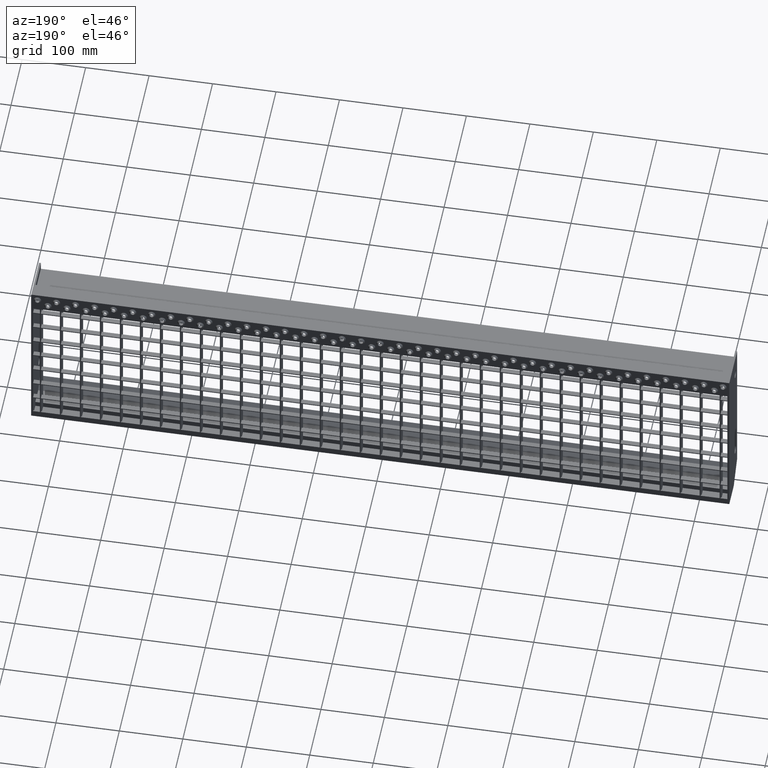
[diagram: clean part render]
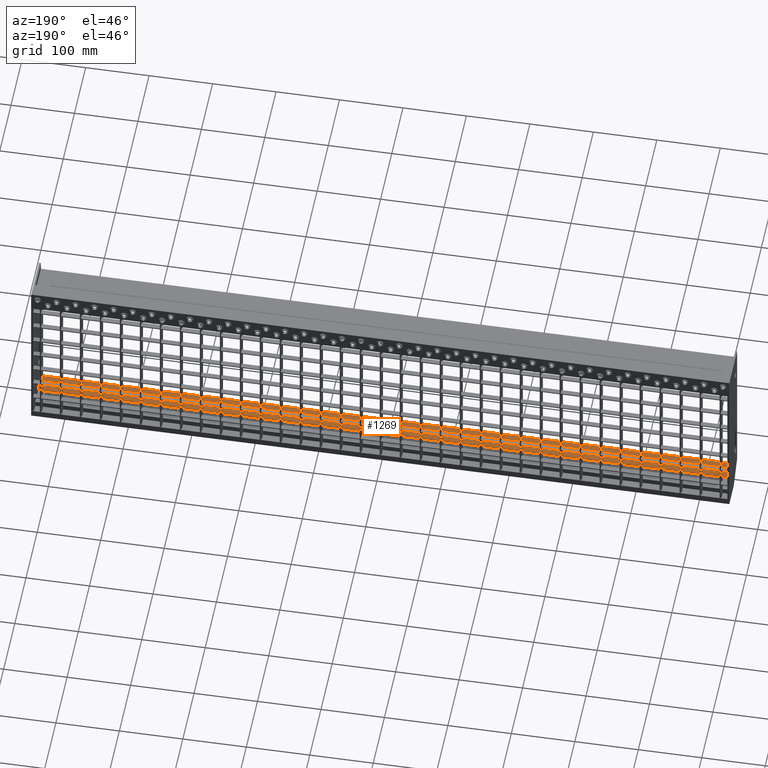
[diagram: same view with one face highlighted and labeled with its STEP entity id]
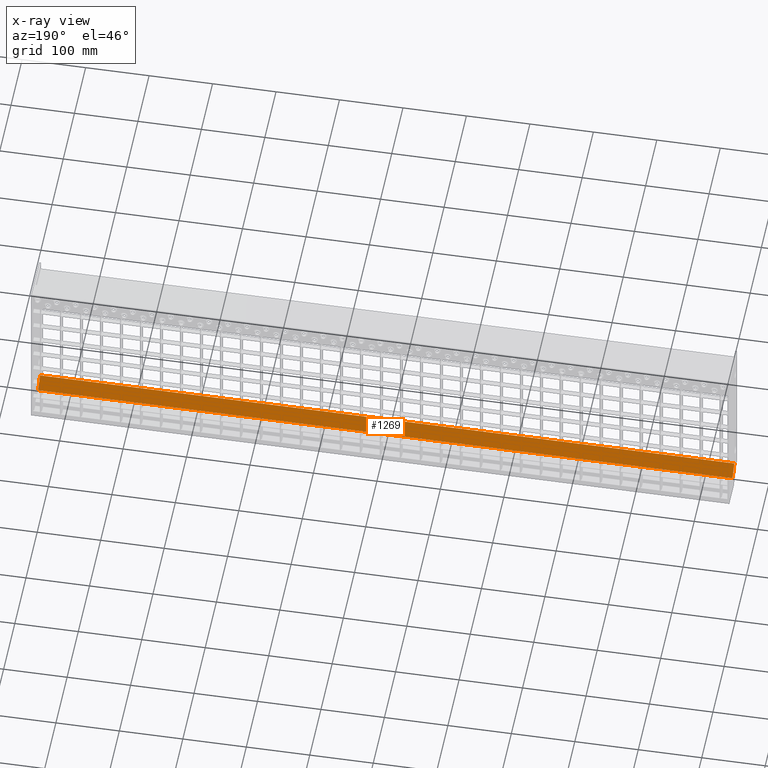
[diagram: x-ray of the same camera — body ghosted, the highlighted face saturated]
A machine part, auxiliary view. The second image highlights one B-rep face of the part: STEP entity #1269.
The next image is the same camera in x-ray: the body ghosted, the highlighted face saturated — about 0% of this face is hidden behind the body in this view.
In plain terms, the highlighted planar face has unit normal (0, -0.7071, -0.7071).
Its self-contained STEP definition (entity closure, byte-faithful):
#1269 = ADVANCED_FACE ( 'NONE', ( #10035 ), #2947, .F. ) ;
#1799 = LINE ( 'NONE', #10095, #23273 ) ;
#2947 = PLANE ( 'NONE',  #29104 ) ;
#5853 = DIRECTION ( 'NONE',  ( 1.000000000000000000, -0.0000000000000000000, -0.0000000000000000000 ) ) ;
#6136 = EDGE_CURVE ( 'NONE', #17119, #26852, #22897, .T. ) ;
#7490 = DIRECTION ( 'NONE',  ( 1.000000000000000000, -0.0000000000000000000, -0.0000000000000000000 ) ) ;
#7800 = VERTEX_POINT ( 'NONE', #27629 ) ;
#8615 = LINE ( 'NONE', #16124, #28360 ) ;
#9154 = ORIENTED_EDGE ( 'NONE', *, *, #6136, .T. ) ;
#10035 = FACE_OUTER_BOUND ( 'NONE', #33409, .T. ) ;
#10095 = CARTESIAN_POINT ( 'NONE',  ( -623.1577310586392300, 24.44974746830583400, -259.5000000000000000 ) ) ;
#11067 = DIRECTION ( 'NONE',  ( 0.0000000000000000000, -0.7071067811865471300, 0.7071067811865479100 ) ) ;
#12008 = ORIENTED_EDGE ( 'NONE', *, *, #27312, .T. ) ;
#16124 = CARTESIAN_POINT ( 'NONE',  ( -547.0000000000000000, 8.064971157455628900, -243.1152236891497900 ) ) ;
#16253 = CARTESIAN_POINT ( 'NONE',  ( -623.1577310586392300, 8.064971157455628900, -243.1152236891497900 ) ) ;
#16270 = VERTEX_POINT ( 'NONE', #26706 ) ;
#16537 = LINE ( 'NONE', #19289, #23636 ) ;
#17119 = VERTEX_POINT ( 'NONE', #34245 ) ;
#17201 = EDGE_CURVE ( 'NONE', #7800, #26852, #1799, .T. ) ;
#19289 = CARTESIAN_POINT ( 'NONE',  ( -623.1577310586392300, 8.064971157455628900, -243.1152236891497900 ) ) ;
#19323 = DIRECTION ( 'NONE',  ( 0.0000000000000000000, 0.7071067811865470200, -0.7071067811865479100 ) ) ;
#20239 = ORIENTED_EDGE ( 'NONE', *, *, #31166, .T. ) ;
#21244 = CARTESIAN_POINT ( 'NONE',  ( 547.0000000000000000, 24.44974746830583400, -259.5000000000000000 ) ) ;
#21787 = DIRECTION ( 'NONE',  ( 0.0000000000000000000, -0.7071067811865479100, -0.7071067811865471300 ) ) ;
#22897 = LINE ( 'NONE', #29958, #23752 ) ;
#23273 = VECTOR ( 'NONE', #7490, 1000.000000000000000 ) ;
#23636 = VECTOR ( 'NONE', #5853, 1000.000000000000000 ) ;
#23752 = VECTOR ( 'NONE', #19323, 1000.000000000000100 ) ;
#26706 = CARTESIAN_POINT ( 'NONE',  ( -547.0000000000000000, 8.064971157455628900, -243.1152236891497900 ) ) ;
#26852 = VERTEX_POINT ( 'NONE', #21244 ) ;
#27155 = DIRECTION ( 'NONE',  ( 0.0000000000000000000, 0.7071067811865471300, -0.7071067811865479100 ) ) ;
#27312 = EDGE_CURVE ( 'NONE', #7800, #16270, #8615, .T. ) ;
#27629 = CARTESIAN_POINT ( 'NONE',  ( -547.0000000000000000, 24.44974746830583400, -259.5000000000000000 ) ) ;
#28360 = VECTOR ( 'NONE', #11067, 1000.000000000000000 ) ;
#29104 = AXIS2_PLACEMENT_3D ( 'NONE', #16253, #21787, #27155 ) ;
#29958 = CARTESIAN_POINT ( 'NONE',  ( 547.0000000000000000, 8.064971157455628900, -243.1152236891497900 ) ) ;
#30989 = ORIENTED_EDGE ( 'NONE', *, *, #17201, .F. ) ;
#31166 = EDGE_CURVE ( 'NONE', #16270, #17119, #16537, .T. ) ;
#33409 = EDGE_LOOP ( 'NONE', ( #30989, #12008, #20239, #9154 ) ) ;
#34245 = CARTESIAN_POINT ( 'NONE',  ( 547.0000000000000000, 8.064971157455628900, -243.1152236891497900 ) ) ;